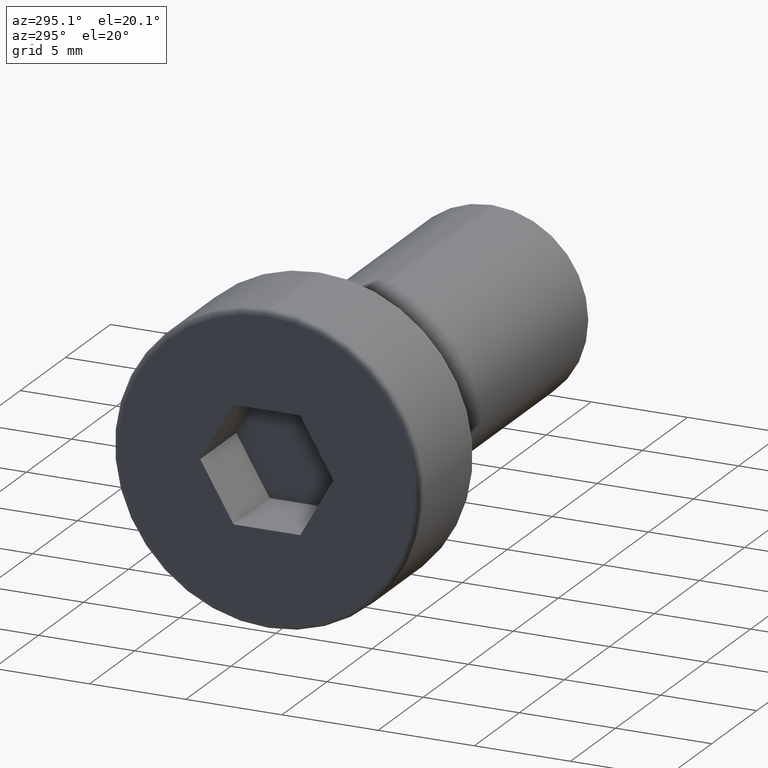
[diagram: clean part render]
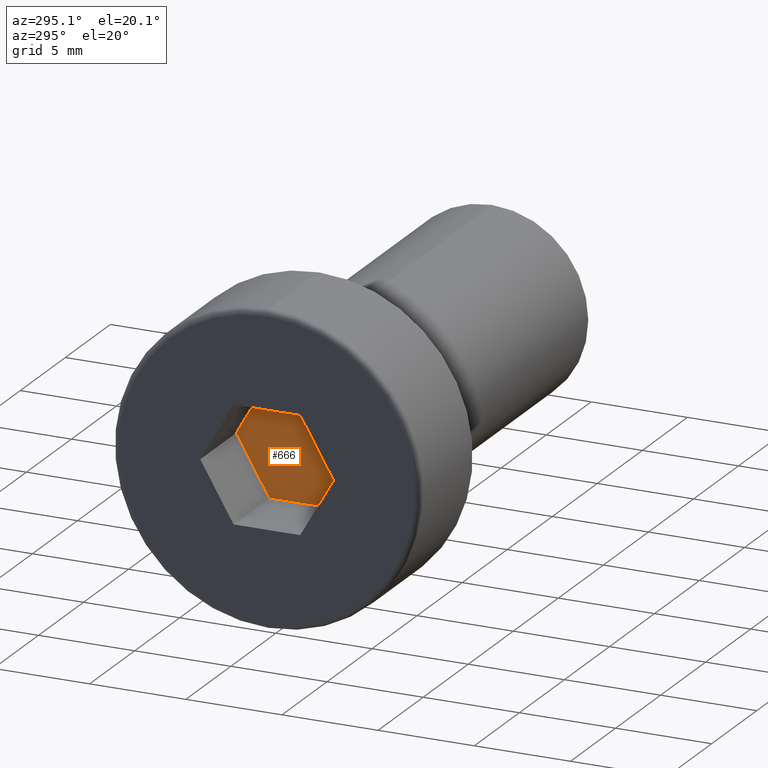
[diagram: same view with one face highlighted and labeled with its STEP entity id]
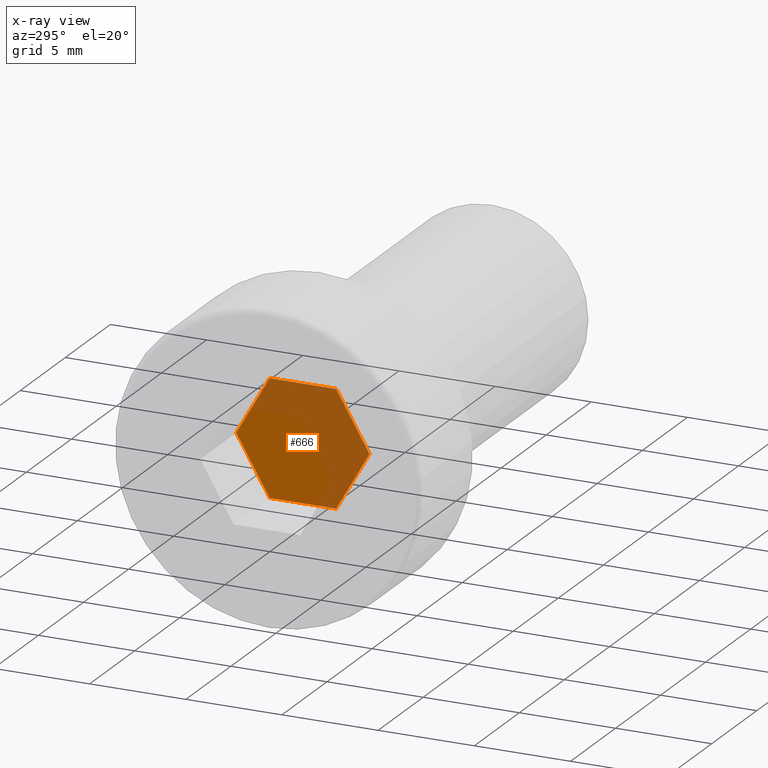
[diagram: x-ray of the same camera — body ghosted, the highlighted face saturated]
A machine part, auxiliary view. The second image highlights one B-rep face of the part: STEP entity #666.
The next image is the same camera in x-ray: the body ghosted, the highlighted face saturated — about 49% of this face is hidden behind the body in this view.
In plain terms, the highlighted planar face has unit normal (1, 0, 0).
Its self-contained STEP definition (entity closure, byte-faithful):
#13 = ORIENTED_EDGE ( 'NONE', *, *, #388, .T. ) ;
#25 = CARTESIAN_POINT ( 'NONE',  ( -2.000000000000000000, -1.732050807568655800, -2.999999999999614100 ) ) ;
#26 = PLANE ( 'NONE',  #659 ) ;
#34 = FACE_OUTER_BOUND ( 'NONE', #276, .T. ) ;
#48 = CARTESIAN_POINT ( 'NONE',  ( -2.000000000000000000, -3.464101615137309900, 0.0000000000000000000 ) ) ;
#57 = ORIENTED_EDGE ( 'NONE', *, *, #524, .T. ) ;
#103 = ORIENTED_EDGE ( 'NONE', *, *, #738, .T. ) ;
#123 = CARTESIAN_POINT ( 'NONE',  ( -2.000000000000000000, -3.464101615137309900, 0.0000000000000000000 ) ) ;
#127 = DIRECTION ( 'NONE',  ( -0.0000000000000000000, 0.5000000000000004400, 0.8660254037844383700 ) ) ;
#133 = VERTEX_POINT ( 'NONE', #48 ) ;
#151 = LINE ( 'NONE', #123, #781 ) ;
#154 = CARTESIAN_POINT ( 'NONE',  ( -2.000000000000000000, 1.732050807568654900, 2.999999999999611400 ) ) ;
#190 = DIRECTION ( 'NONE',  ( -0.0000000000000000000, 1.000000000000000000, -5.007715329124508700E-016 ) ) ;
#198 = CARTESIAN_POINT ( 'NONE',  ( -2.000000000000000000, 1.732050807568653600, -2.999999999999614100 ) ) ;
#214 = EDGE_CURVE ( 'NONE', #401, #133, #151, .T. ) ;
#228 = LINE ( 'NONE', #322, #705 ) ;
#255 = VECTOR ( 'NONE', #436, 1000.000000000000100 ) ;
#263 = CARTESIAN_POINT ( 'NONE',  ( -2.000000000000000000, -1.732050807568655800, -2.999999999999614100 ) ) ;
#275 = LINE ( 'NONE', #25, #444 ) ;
#276 = EDGE_LOOP ( 'NONE', ( #490, #455, #13, #697, #57, #103 ) ) ;
#294 = EDGE_CURVE ( 'NONE', #531, #742, #423, .T. ) ;
#303 = CARTESIAN_POINT ( 'NONE',  ( -2.000000000000000000, 3.464101615137311200, -1.734723475976807100E-015 ) ) ;
#313 = VERTEX_POINT ( 'NONE', #198 ) ;
#321 = VECTOR ( 'NONE', #190, 1000.000000000000000 ) ;
#322 = CARTESIAN_POINT ( 'NONE',  ( -2.000000000000000000, 1.732050807568653600, -2.999999999999614100 ) ) ;
#352 = EDGE_CURVE ( 'NONE', #133, #794, #546, .T. ) ;
#357 = VECTOR ( 'NONE', #127, 1000.000000000000000 ) ;
#362 = CARTESIAN_POINT ( 'NONE',  ( -2.000000000000000000, 1.732050807568654900, 2.999999999999611400 ) ) ;
#388 = EDGE_CURVE ( 'NONE', #794, #531, #818, .T. ) ;
#401 = VERTEX_POINT ( 'NONE', #263 ) ;
#423 = LINE ( 'NONE', #303, #255 ) ;
#436 = DIRECTION ( 'NONE',  ( -0.0000000000000000000, 0.5000000000000005600, -0.8660254037844382600 ) ) ;
#444 = VECTOR ( 'NONE', #799, 1000.000000000000000 ) ;
#455 = ORIENTED_EDGE ( 'NONE', *, *, #352, .T. ) ;
#458 = CARTESIAN_POINT ( 'NONE',  ( -2.000000000000000000, -1.732050807568653800, 2.999999999999613200 ) ) ;
#490 = ORIENTED_EDGE ( 'NONE', *, *, #214, .T. ) ;
#516 = CARTESIAN_POINT ( 'NONE',  ( -2.000000000000000000, 0.0000000000000000000, 0.0000000000000000000 ) ) ;
#524 = EDGE_CURVE ( 'NONE', #742, #313, #228, .T. ) ;
#531 = VERTEX_POINT ( 'NONE', #154 ) ;
#546 = LINE ( 'NONE', #458, #357 ) ;
#583 = DIRECTION ( 'NONE',  ( 0.0000000000000000000, 0.0000000000000000000, -1.000000000000000000 ) ) ;
#622 = DIRECTION ( 'NONE',  ( -0.0000000000000000000, -0.4999999999999999400, 0.8660254037844387100 ) ) ;
#659 = AXIS2_PLACEMENT_3D ( 'NONE', #516, #733, #583 ) ;
#666 = ADVANCED_FACE ( 'NONE', ( #34 ), #26, .F. ) ;
#697 = ORIENTED_EDGE ( 'NONE', *, *, #294, .T. ) ;
#705 = VECTOR ( 'NONE', #719, 1000.000000000000000 ) ;
#716 = CARTESIAN_POINT ( 'NONE',  ( -2.000000000000000000, 3.464101615137311200, -1.734723475976807100E-015 ) ) ;
#719 = DIRECTION ( 'NONE',  ( -0.0000000000000000000, -0.5000000000000008900, -0.8660254037844381500 ) ) ;
#733 = DIRECTION ( 'NONE',  ( 1.000000000000000000, -0.0000000000000000000, 0.0000000000000000000 ) ) ;
#738 = EDGE_CURVE ( 'NONE', #313, #401, #275, .T. ) ;
#742 = VERTEX_POINT ( 'NONE', #716 ) ;
#781 = VECTOR ( 'NONE', #622, 999.9999999999998900 ) ;
#789 = CARTESIAN_POINT ( 'NONE',  ( -2.000000000000000000, -1.732050807568653800, 2.999999999999613200 ) ) ;
#794 = VERTEX_POINT ( 'NONE', #789 ) ;
#799 = DIRECTION ( 'NONE',  ( -0.0000000000000000000, -1.000000000000000000, -0.0000000000000000000 ) ) ;
#818 = LINE ( 'NONE', #362, #321 ) ;